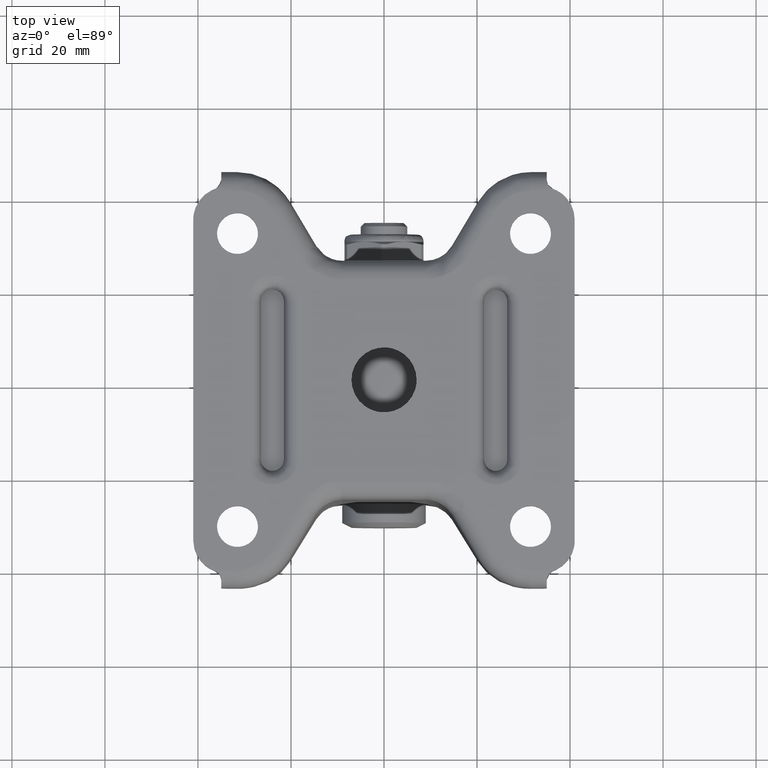
[diagram: clean part render]
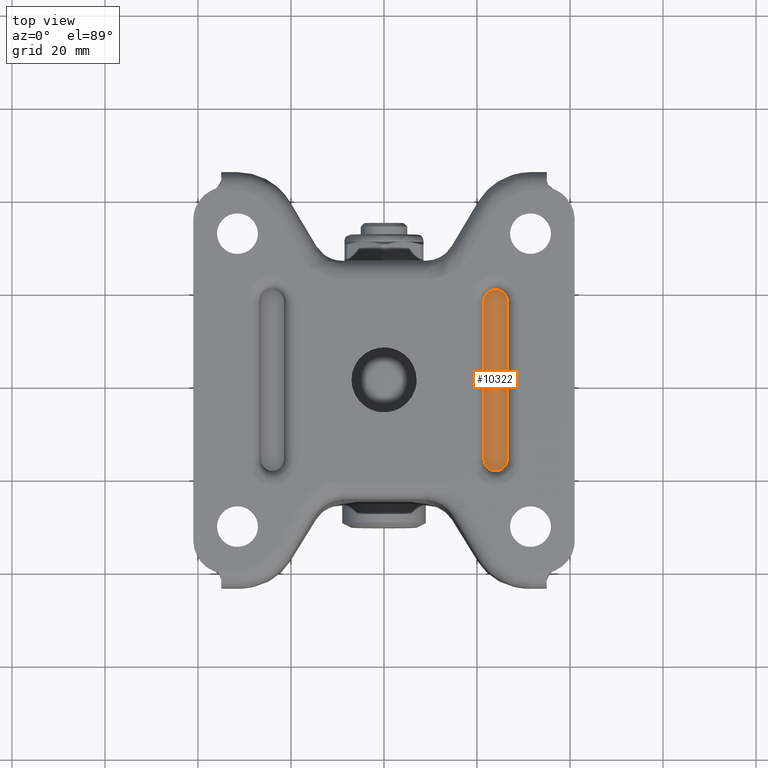
[diagram: same view with one face highlighted and labeled with its STEP entity id]
A machine part, top view. The second image highlights one B-rep face of the part: STEP entity #10322.
In plain terms, the highlighted face is a freeform B-spline surface patch.
Its self-contained STEP definition (entity closure, byte-faithful):
#10265=CARTESIAN_POINT('',(21.250250009690969,21.448049924409951,-3.200000000000000));
#10266=CARTESIAN_POINT('',(26.749750124419489,21.448049924409951,-3.200000000000000));
#10267=CARTESIAN_POINT('',(21.250250009690969,-21.448050970471922,-3.200000000000000));
#10268=CARTESIAN_POINT('',(26.749750124419489,-21.448050970471922,-3.200000000000000));
#10269=B_SPLINE_SURFACE_WITH_KNOTS('',1,1,((#10265,#10267),(#10266,#10268)),.UNSPECIFIED.,.F.,.F.,.U.,(2,2),(2,2),(0.0,5.499500114728512),(0.0,42.896100894881869),.UNSPECIFIED.);
#10270=CARTESIAN_POINT('',(26.500000000000000,-16.999999562886050,-3.200000000000000));
#10271=VERTEX_POINT('',#10270);
#10272=CARTESIAN_POINT('',(26.500000000000000,17.0,-3.200000000000000));
#10273=VERTEX_POINT('',#10272);
#10274=CARTESIAN_POINT('',(26.500000000000000,-16.999999562886050,-3.200000000000000));
#10275=CARTESIAN_POINT('',(26.500000000000000,17.0,-3.200000000000000));
#10276=QUASI_UNIFORM_CURVE('',1,(#10274,#10275),.UNSPECIFIED.,.F.,.U.);
#10277=EDGE_CURVE('',#10271,#10273,#10276,.T.);
#10278=ORIENTED_EDGE('',*,*,#10277,.T.);
#10279=CARTESIAN_POINT('',(21.500000000000600,17.000001745329300,-3.200000000000000));
#10280=VERTEX_POINT('',#10279);
#10281=CARTESIAN_POINT('',(26.500000000000000,17.0,-3.200000000000000));
#10282=CARTESIAN_POINT('',(26.500000000000000,19.499999127335499,-3.200000000000000));
#10283=CARTESIAN_POINT('',(24.000000872664650,19.499999999999851,-3.200000000000000));
#10284=CARTESIAN_POINT('',(21.500001745329296,19.500000872664192,-3.200000000000000));
#10285=CARTESIAN_POINT('',(21.500000000000611,17.000001745329300,-3.200000000000000));
#10293=(BOUNDED_CURVE()B_SPLINE_CURVE(2,(#10281,#10282,#10283,#10284,#10285),.UNSPECIFIED.,.F.,.U.)B_SPLINE_CURVE_WITH_KNOTS((3,2,3),(0.0,0.500000000000000,1.0),.UNSPECIFIED.)CURVE()GEOMETRIC_REPRESENTATION_ITEM()RATIONAL_B_SPLINE_CURVE((1.0,0.707106904599955,1.0,0.707106904599955,1.0))REPRESENTATION_ITEM(''));
#10294=EDGE_CURVE('',#10273,#10280,#10293,.T.);
#10295=ORIENTED_EDGE('',*,*,#10294,.T.);
#10296=CARTESIAN_POINT('',(21.500000000000000,-17.0,-3.200000000000000));
#10297=VERTEX_POINT('',#10296);
#10298=CARTESIAN_POINT('',(21.500000000000600,17.000001745329300,-3.200000000000000));
#10299=CARTESIAN_POINT('',(21.500000000000000,-17.0,-3.200000000000000));
#10300=QUASI_UNIFORM_CURVE('',1,(#10298,#10299),.UNSPECIFIED.,.F.,.U.);
#10301=EDGE_CURVE('',#10280,#10297,#10300,.T.);
#10302=ORIENTED_EDGE('',*,*,#10301,.T.);
#10303=CARTESIAN_POINT('',(21.500000000000000,-17.0,-3.200000000000000));
#10304=CARTESIAN_POINT('',(21.499999999999996,-18.443375770110503,-3.200000000000001));
#10305=CARTESIAN_POINT('',(22.750000126183931,-19.165063582313419,-3.200000000000000));
#10306=CARTESIAN_POINT('',(24.000000252367862,-19.886751394516342,-3.200000000000001));
#10307=CARTESIAN_POINT('',(25.250000252367851,-19.165063363756431,-3.200000000000000));
#10308=CARTESIAN_POINT('',(26.500000252367833,-18.443375332996528,-3.200000000000001));
#10309=CARTESIAN_POINT('',(26.499999999999961,-16.999999562886050,-3.200000000000000));
#10317=(BOUNDED_CURVE()B_SPLINE_CURVE(2,(#10303,#10304,#10305,#10306,#10307,#10308,#10309),.UNSPECIFIED.,.F.,.U.)B_SPLINE_CURVE_WITH_KNOTS((3,2,2,3),(0.0,0.333333333333333,0.666666666666667,1.0),.UNSPECIFIED.)CURVE()GEOMETRIC_REPRESENTATION_ITEM()RATIONAL_B_SPLINE_CURVE((1.0,0.866025389213973,1.0,0.866025389213973,1.0,0.866025389213973,1.0))REPRESENTATION_ITEM(''));
#10318=EDGE_CURVE('',#10297,#10271,#10317,.T.);
#10319=ORIENTED_EDGE('',*,*,#10318,.T.);
#10320=EDGE_LOOP('',(#10278,#10295,#10302,#10319));
#10321=FACE_OUTER_BOUND('',#10320,.T.);
#10322=ADVANCED_FACE('',(#10321),#10269,.F.);